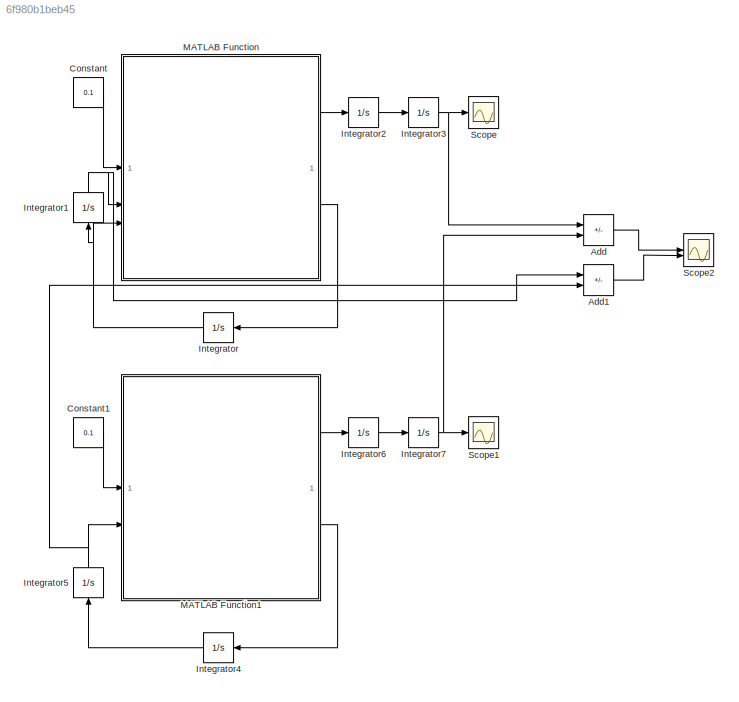
MODEL slx_6f980b1beb45
KIND model
CONFIG AbsTol = auto
CONFIG EnableMultiTasking = off
CONFIG FixedStep = auto
CONFIG MaxStep = auto
CONFIG MinStep = auto
CONFIG RelTol = 1e-3
CONFIG SampleTimeConstraint = Unconstrained
CONFIG SolverName = VariableStepAuto
CONFIG StartTime = 0.0
CONFIG StopTime = 0.1
BLOCK [Sum] Add
  IconShape = rectangular
  Inputs = +-
BLOCK [Sum] Add1
  IconShape = rectangular
  Inputs = +-
BLOCK [Constant] Constant
  Value = 0.1
BLOCK [Constant] Constant1
  Value = 0.1
BLOCK [Integrator] Integrator
BLOCK [Integrator] Integrator1
  NameLocation = left
BLOCK [Integrator] Integrator2
BLOCK [Integrator] Integrator3
BLOCK [Integrator] Integrator4
BLOCK [Integrator] Integrator5
  NameLocation = left
BLOCK [Integrator] Integrator6
BLOCK [Integrator] Integrator7
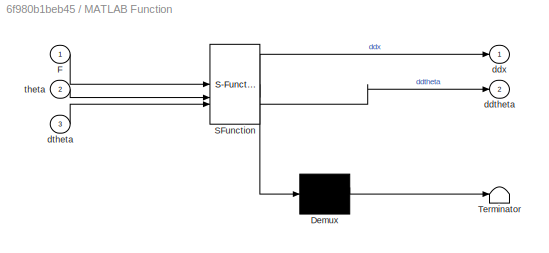
BLOCK [SubSystem] MATLAB Function
  ErrorFcn = Stateflow.Translate.translate
  PermitHierarchicalResolution = ExplicitOnly
  SFBlockType = MATLAB Function
  TreatAsAtomicUnit = on
BLOCK [Demux] MATLAB Function/ Demux 
  Outputs = 1
BLOCK [S-Function] MATLAB Function/ SFunction 
  EnableBusSupport = on
  FunctionName = sf_sfun
  PortCounts = [3 3]
  SFcnIsStateOwnerBlock = off
  SFunctionDeploymentMode = off
  Tag = Stateflow S-Function 2
BLOCK [Terminator] MATLAB Function/ Terminator 
BLOCK [Inport] MATLAB Function/F
BLOCK [Outport] MATLAB Function/ddtheta
  Port = 2
BLOCK [Outport] MATLAB Function/ddx
BLOCK [Inport] MATLAB Function/dtheta
  Port = 3
BLOCK [Inport] MATLAB Function/theta
  Port = 2
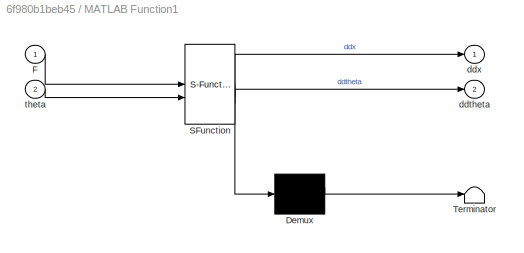
BLOCK [SubSystem] MATLAB Function1
  ErrorFcn = Stateflow.Translate.translate
  PermitHierarchicalResolution = ExplicitOnly
  SFBlockType = MATLAB Function
  TreatAsAtomicUnit = on
BLOCK [Demux] MATLAB Function1/ Demux 
  Outputs = 1
BLOCK [S-Function] MATLAB Function1/ SFunction 
  EnableBusSupport = on
  FunctionName = sf_sfun
  PortCounts = [2 3]
  SFcnIsStateOwnerBlock = off
  SFunctionDeploymentMode = off
  Tag = Stateflow S-Function 1
BLOCK [Terminator] MATLAB Function1/ Terminator 
BLOCK [Inport] MATLAB Function1/F
BLOCK [Outport] MATLAB Function1/ddtheta
  Port = 2
BLOCK [Outport] MATLAB Function1/ddx
BLOCK [Inport] MATLAB Function1/theta
  Port = 2
BLOCK [Scope] Scope
  Floating = off
  NumInputPorts = 1
  ScopeSpecificationString = Simulink.scopes.TimeScopeBlockCfg('CurrentConfiguration', extmgr.ConfigurationSet(extmgr.Configuration('Core','General UI',true),extmgr.Configuration('Core','Source UI',true),extmgr.Configuration('Sources','WiredSimulink',true),extmgr.Configuration('Visuals','Time Domain',true,'SerializedDisplays',{struct('MinYLimReal','-0.00005','MaxYLimReal','0.00046','YLabelReal','','MinYLimMag','0.00000','MaxY...<+1399ch>
BLOCK [Scope] Scope1
  Floating = off
  NumInputPorts = 1
  ScopeSpecificationString = Simulink.scopes.TimeScopeBlockCfg('CurrentConfiguration', extmgr.ConfigurationSet(extmgr.Configuration('Core','General UI',true),extmgr.Configuration('Core','Source UI',true),extmgr.Configuration('Sources','WiredSimulink',true,'DataLoggingVariableName','ScopeData1'),extmgr.Configuration('Visuals','Time Domain',true,'SerializedDisplays',{struct('MinYLimReal','-0.00005','MaxYLimReal','0.00046','YLab...<+1424ch>
BLOCK [Scope] Scope2
  Floating = off
  NumInputPorts = 2
  ScopeSpecificationString = Simulink.scopes.TimeScopeBlockCfg('CurrentConfiguration', extmgr.ConfigurationSet(extmgr.Configuration('Core','General UI',true),extmgr.Configuration('Core','Source UI',true),extmgr.Configuration('Sources','WiredSimulink',true,'DataLoggingVariableName','ScopeData2'),extmgr.Configuration('Visuals','Time Domain',true,'SerializedDisplays',{struct('MinYLimReal','-0.00000000008','MaxYLimReal','0.000000...<+1530ch>
LINE Add1:1 -> Scope2:2
LINE Add:1 -> Scope2:1
LINE Constant1:1 -> MATLAB Function1:1
LINE Constant:1 -> MATLAB Function:1
NET Integrator1:1 -> Add1:1, MATLAB Function:2
LINE Integrator2:1 -> Integrator3:1
NET Integrator3:1 -> Add:1, Scope:1
LINE Integrator4:1 -> Integrator5:1
NET Integrator5:1 -> Add1:2, MATLAB Function1:2
LINE Integrator6:1 -> Integrator7:1
NET Integrator7:1 -> Add:2, Scope1:1
NET Integrator:1 -> Integrator1:1, MATLAB Function:3
LINE MATLAB Function1:1 -> Integrator6:1
LINE MATLAB Function1:2 -> Integrator4:1
LINE MATLAB Function:1 -> Integrator2:1
LINE MATLAB Function:2 -> Integrator:1
note: NET lines group one-source signal fan-out (src -> all destinations, sorted); 1:1 wires keep LINE
CHART MATLAB Function1 states=1 transitions=1
  STATE_LABEL 'eML_blk_kernel()'
  STATE_LABEL 'SCRIPT:\nfunction [ddx,ddtheta] = fcn(F,theta)\n\nddx = -6*theta + 0.8*F;\nddtheta = 40*theta-2.0*F;'
CHART MATLAB Function states=1 transitions=1
  STATE_LABEL 'eML_blk_kernel()'
  STATE_LABEL 'SCRIPT:\nfunction [ddx,ddtheta] = fcn(F,theta,dtheta)\n\nddx = 0.12*F + 0.036*sin(theta)*dtheta^2 - 0.9*sin(theta)*cos(theta);\nddx = ddx / ( 0.24 - 0.09*cos(theta)^2 );\n\nddtheta = 0.3*cos(theta)*F + 0.09*sin(theta)*cos(theta)*dtheta^2 - 6*sin(theta);\nddtheta = ddtheta / ( -0.24 + 0.09*cos(theta)^2 );'
CHART  states=0 transitions=0
CHART  states=0 transitions=0
